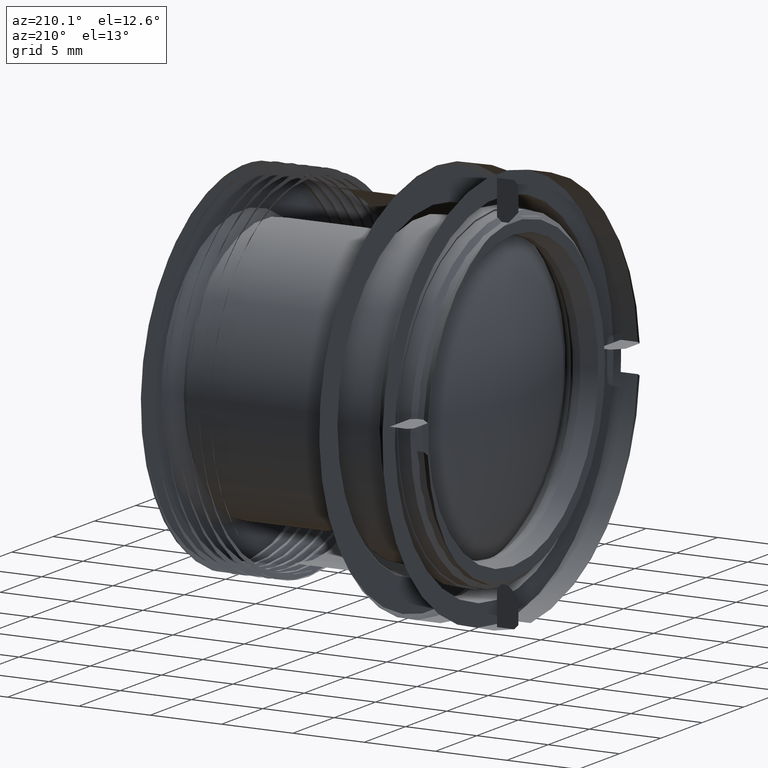
[diagram: clean part render]
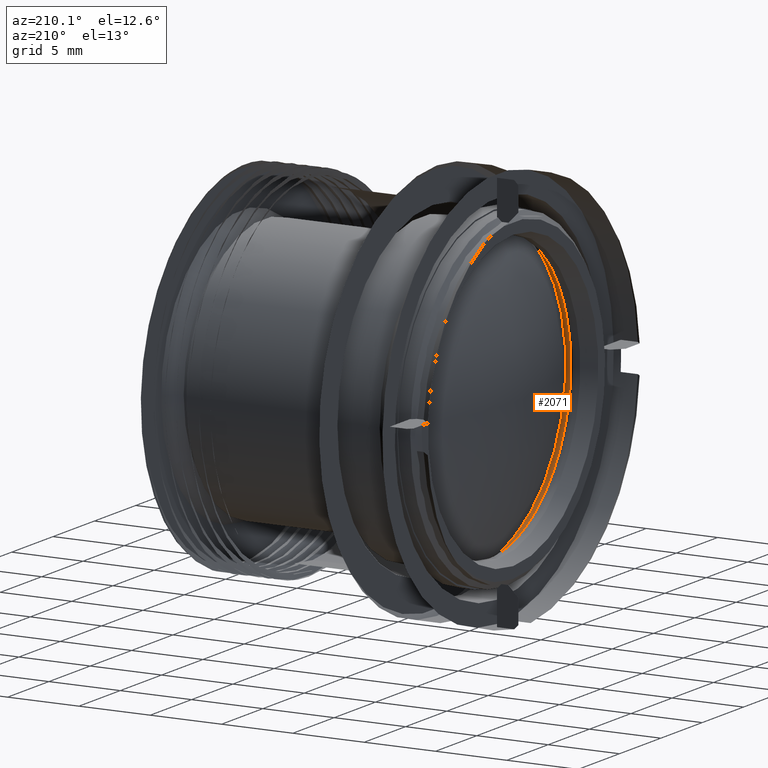
[diagram: same view with one face highlighted and labeled with its STEP entity id]
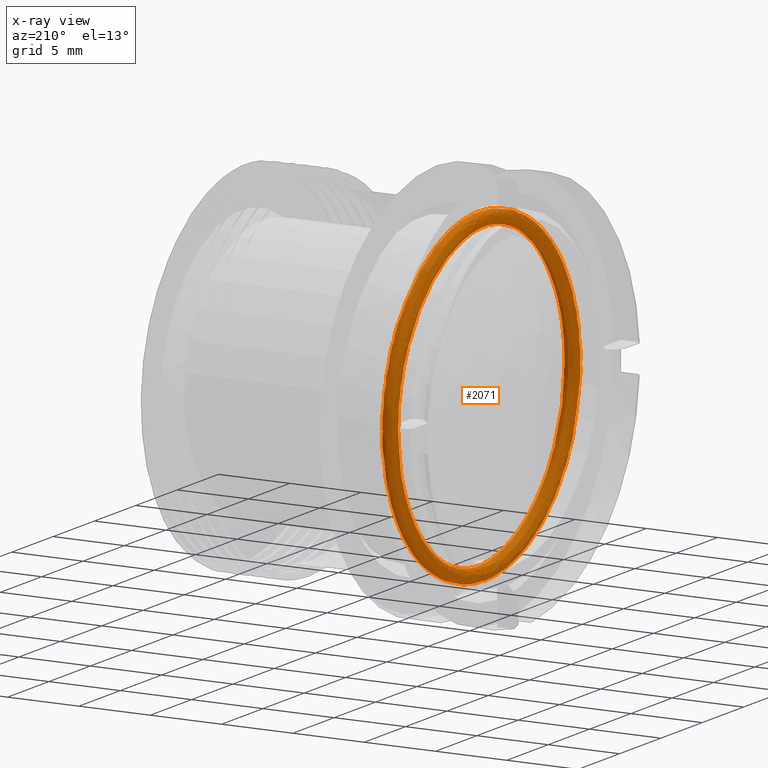
[diagram: x-ray of the same camera — body ghosted, the highlighted face saturated]
A machine part, auxiliary view. The second image highlights one B-rep face of the part: STEP entity #2071.
The next image is the same camera in x-ray: the body ghosted, the highlighted face saturated — about 0% of this face is hidden behind the body in this view.
In plain terms, the highlighted face is a freeform B-spline surface patch.
Its self-contained STEP definition (entity closure, byte-faithful):
#5 = CARTESIAN_POINT ( 'NONE',  ( 74.17788709195680497, 0.000000000000000000, 11.50000000000181899 ) ) ;
#305 = CARTESIAN_POINT ( 'NONE',  ( 75.17788709195679075, 21.00000000000364508, 10.50000000000182254 ) ) ;
#331 = CARTESIAN_POINT ( 'NONE',  ( 73.17788709195680497, -23.00000000000363798, -11.50000000000181899 ) ) ;
#358 = CARTESIAN_POINT ( 'NONE',  ( 74.17788709195680497, 0.000000000000000000, -10.50000000000181899 ) ) ;
#403 = CARTESIAN_POINT ( 'NONE',  ( 73.17788709195679075, 0.000000000000000000, 10.50000000000181899 ) ) ;
#705 = CARTESIAN_POINT ( 'NONE',  ( 75.17788709195680497, 0.000000000000000000, -10.50000000000181899 ) ) ;
#756 = CARTESIAN_POINT ( 'NONE',  ( 75.17788709195679075, -21.00000000000364508, -10.50000000000182254 ) ) ;
#782 = CARTESIAN_POINT ( 'NONE',  ( 74.17788709195680497, 23.00000000000363798, 11.50000000000181899 ) ) ;
#805 = CARTESIAN_POINT ( 'NONE',  ( 74.17788709195680497, 21.00000000000363443, 10.50000000000181721 ) ) ;
#1061 =( BOUNDED_SURFACE ( )  B_SPLINE_SURFACE ( 3, 3, ( 
 ( #4031, #2419, #4860, #1593, #2338, #4487, #1235 ),
 ( #3608, #3276, #1184, #1210, #4082, #331, #5275 ),
 ( #4462, #1985, #5224, #403, #1566, #4058, #4912 ),
 ( #358, #3250, #805, #4836, #1159, #2790, #4886 ),
 ( #4407, #4436, #305, #4384, #2842, #756, #705 ),
 ( #3632, #2011, #2817, #3225, #3978, #2038, #5198 ),
 ( #2391, #3171, #782, #5, #1641, #5250, #1619 ) ),
 .UNSPECIFIED., .T., .T., .F. ) 
 B_SPLINE_SURFACE_WITH_KNOTS ( ( 4, 3, 4 ),
 ( 4, 3, 4 ),
 ( 0.000000000000000000, 0.5000000000000000000, 1.000000000000000000 ),
 ( 0.000000000000000000, 0.5000000000000000000, 1.000000000000000000 ),
 .UNSPECIFIED. ) 
 GEOMETRIC_REPRESENTATION_ITEM ( )  RATIONAL_B_SPLINE_SURFACE ( (
 ( 1.000000000000000000, 0.3333333333333333148, 0.3333333333333333148, 1.000000000000000000, 0.3333333333333333148, 0.3333333333333333148, 1.000000000000000000),
 ( 0.3333333333333333703, 0.1111111111111111188, 0.1111111111111111188, 0.3333333333333333703, 0.1111111111111111188, 0.1111111111111111188, 0.3333333333333333703),
 ( 0.3333333333333333703, 0.1111111111111111188, 0.1111111111111111188, 0.3333333333333333703, 0.1111111111111111188, 0.1111111111111111188, 0.3333333333333333703),
 ( 1.000000000000000000, 0.3333333333333333148, 0.3333333333333333148, 1.000000000000000000, 0.3333333333333333148, 0.3333333333333333148, 1.000000000000000000),
 ( 0.3333333333333333703, 0.1111111111111111188, 0.1111111111111111188, 0.3333333333333333703, 0.1111111111111111188, 0.1111111111111111188, 0.3333333333333333703),
 ( 0.3333333333333333703, 0.1111111111111111188, 0.1111111111111111188, 0.3333333333333333703, 0.1111111111111111188, 0.1111111111111111188, 0.3333333333333333703),
 ( 1.000000000000000000, 0.3333333333333333148, 0.3333333333333333148, 1.000000000000000000, 0.3333333333333333148, 0.3333333333333333148, 1.000000000000000000) ) ) 
 REPRESENTATION_ITEM ( '' )  SURFACE ( )  );
#1159 = CARTESIAN_POINT ( 'NONE',  ( 74.17788709195680497, -21.00000000000363443, 10.50000000000181721 ) ) ;
#1184 = CARTESIAN_POINT ( 'NONE',  ( 73.17788709195680497, 23.00000000000363798, 11.50000000000181899 ) ) ;
#1210 = CARTESIAN_POINT ( 'NONE',  ( 73.17788709195679075, 0.000000000000000000, 11.50000000000181899 ) ) ;
#1235 = CARTESIAN_POINT ( 'NONE',  ( 74.17788709195680497, 0.000000000000000000, -11.50000000000181899 ) ) ;
#1566 = CARTESIAN_POINT ( 'NONE',  ( 73.17788709195680497, -21.00000000000364508, 10.50000000000182254 ) ) ;
#1593 = CARTESIAN_POINT ( 'NONE',  ( 74.17788709195680497, 0.000000000000000000, 11.50000000000181899 ) ) ;
#1619 = CARTESIAN_POINT ( 'NONE',  ( 74.17788709195680497, 0.000000000000000000, -11.50000000000181899 ) ) ;
#1641 = CARTESIAN_POINT ( 'NONE',  ( 74.17788709195680497, -23.00000000000363798, 11.50000000000181899 ) ) ;
#1985 = CARTESIAN_POINT ( 'NONE',  ( 73.17788709195680497, 21.00000000000364508, -10.50000000000182254 ) ) ;
#2011 = CARTESIAN_POINT ( 'NONE',  ( 75.17788709195679075, 23.00000000000363798, -11.50000000000181899 ) ) ;
#2038 = CARTESIAN_POINT ( 'NONE',  ( 75.17788709195679075, -23.00000000000363798, -11.50000000000181899 ) ) ;
#2071 = ADVANCED_FACE ( 'NONE', ( ), #1061, .T. ) ;
#2338 = CARTESIAN_POINT ( 'NONE',  ( 74.17788709195680497, -23.00000000000363798, 11.50000000000181899 ) ) ;
#2391 = CARTESIAN_POINT ( 'NONE',  ( 74.17788709195680497, 0.000000000000000000, -11.50000000000181899 ) ) ;
#2419 = CARTESIAN_POINT ( 'NONE',  ( 74.17788709195680497, 23.00000000000363798, -11.50000000000181899 ) ) ;
#2790 = CARTESIAN_POINT ( 'NONE',  ( 74.17788709195680497, -21.00000000000363443, -10.50000000000181721 ) ) ;
#2817 = CARTESIAN_POINT ( 'NONE',  ( 75.17788709195679075, 23.00000000000363798, 11.50000000000181899 ) ) ;
#2842 = CARTESIAN_POINT ( 'NONE',  ( 75.17788709195679075, -21.00000000000364508, 10.50000000000182254 ) ) ;
#3171 = CARTESIAN_POINT ( 'NONE',  ( 74.17788709195680497, 23.00000000000363798, -11.50000000000181899 ) ) ;
#3225 = CARTESIAN_POINT ( 'NONE',  ( 75.17788709195680497, 0.000000000000000000, 11.50000000000181899 ) ) ;
#3250 = CARTESIAN_POINT ( 'NONE',  ( 74.17788709195680497, 21.00000000000363443, -10.50000000000181721 ) ) ;
#3276 = CARTESIAN_POINT ( 'NONE',  ( 73.17788709195680497, 23.00000000000363798, -11.50000000000181899 ) ) ;
#3608 = CARTESIAN_POINT ( 'NONE',  ( 73.17788709195679075, 0.000000000000000000, -11.50000000000181899 ) ) ;
#3632 = CARTESIAN_POINT ( 'NONE',  ( 75.17788709195680497, 0.000000000000000000, -11.50000000000181899 ) ) ;
#3978 = CARTESIAN_POINT ( 'NONE',  ( 75.17788709195679075, -23.00000000000363798, 11.50000000000181899 ) ) ;
#4031 = CARTESIAN_POINT ( 'NONE',  ( 74.17788709195680497, 0.000000000000000000, -11.50000000000181899 ) ) ;
#4058 = CARTESIAN_POINT ( 'NONE',  ( 73.17788709195680497, -21.00000000000364508, -10.50000000000182254 ) ) ;
#4082 = CARTESIAN_POINT ( 'NONE',  ( 73.17788709195680497, -23.00000000000363798, 11.50000000000181899 ) ) ;
#4384 = CARTESIAN_POINT ( 'NONE',  ( 75.17788709195680497, 0.000000000000000000, 10.50000000000181899 ) ) ;
#4407 = CARTESIAN_POINT ( 'NONE',  ( 75.17788709195680497, 0.000000000000000000, -10.50000000000181899 ) ) ;
#4436 = CARTESIAN_POINT ( 'NONE',  ( 75.17788709195679075, 21.00000000000364508, -10.50000000000182254 ) ) ;
#4462 = CARTESIAN_POINT ( 'NONE',  ( 73.17788709195679075, 0.000000000000000000, -10.50000000000181899 ) ) ;
#4487 = CARTESIAN_POINT ( 'NONE',  ( 74.17788709195680497, -23.00000000000363798, -11.50000000000181899 ) ) ;
#4836 = CARTESIAN_POINT ( 'NONE',  ( 74.17788709195680497, 0.000000000000000000, 10.50000000000181899 ) ) ;
#4860 = CARTESIAN_POINT ( 'NONE',  ( 74.17788709195680497, 23.00000000000363798, 11.50000000000181899 ) ) ;
#4886 = CARTESIAN_POINT ( 'NONE',  ( 74.17788709195680497, 0.000000000000000000, -10.50000000000181899 ) ) ;
#4912 = CARTESIAN_POINT ( 'NONE',  ( 73.17788709195679075, 0.000000000000000000, -10.50000000000181899 ) ) ;
#5198 = CARTESIAN_POINT ( 'NONE',  ( 75.17788709195680497, 0.000000000000000000, -11.50000000000181899 ) ) ;
#5224 = CARTESIAN_POINT ( 'NONE',  ( 73.17788709195680497, 21.00000000000364508, 10.50000000000182254 ) ) ;
#5250 = CARTESIAN_POINT ( 'NONE',  ( 74.17788709195680497, -23.00000000000363798, -11.50000000000181899 ) ) ;
#5275 = CARTESIAN_POINT ( 'NONE',  ( 73.17788709195679075, 0.000000000000000000, -11.50000000000181899 ) ) ;